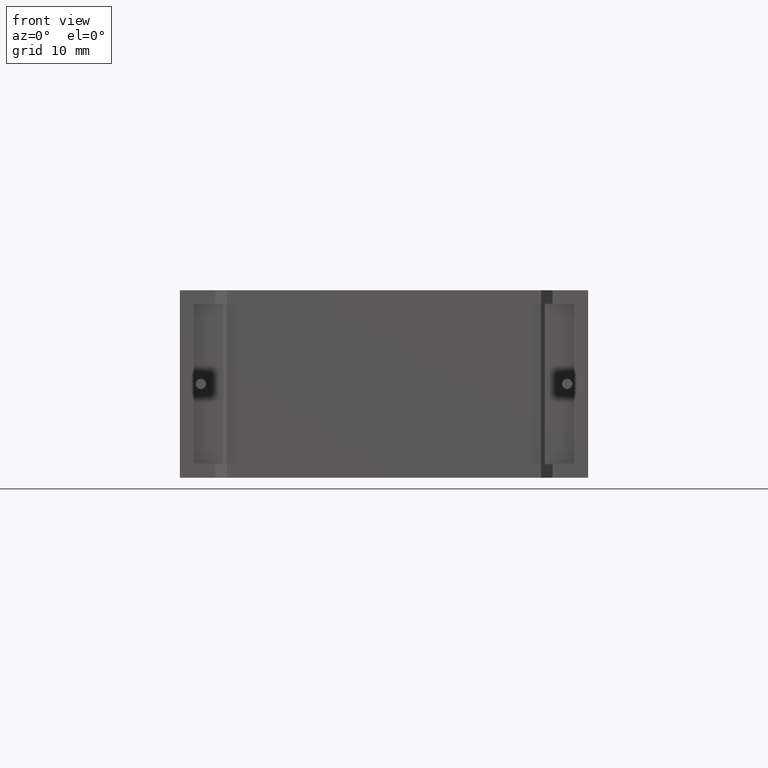
[diagram: clean part render]
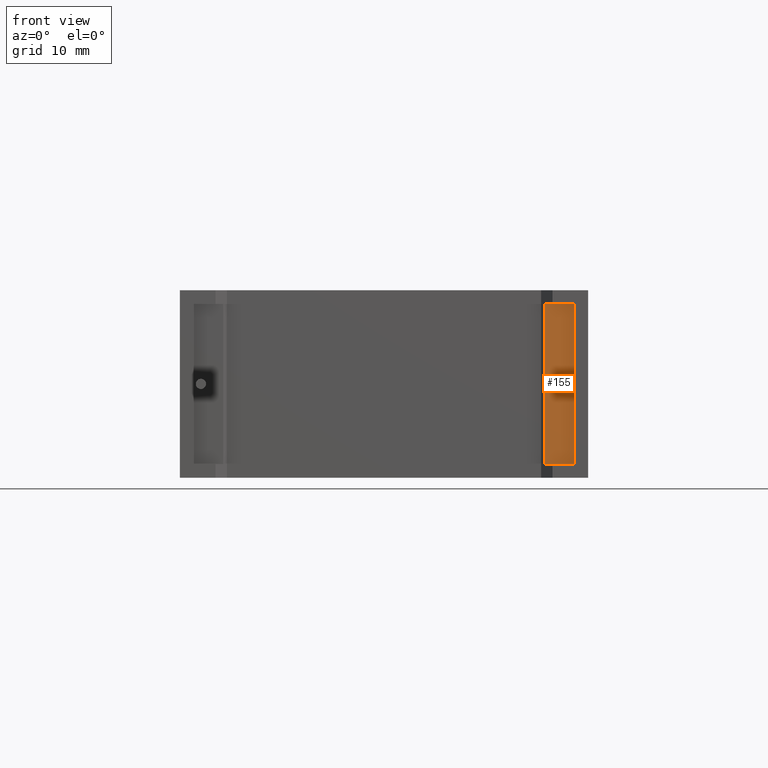
[diagram: same view with one face highlighted and labeled with its STEP entity id]
A machine part, front view. The second image highlights one B-rep face of the part: STEP entity #155.
In plain terms, the highlighted planar face has unit normal (0, -1, 0).
Its self-contained STEP definition (entity closure, byte-faithful):
#3 = DIRECTION ( 'NONE',  ( 0.000000000000000000, 0.000000000000000000, -1.000000000000000000 ) ) ;
#24 = VECTOR ( 'NONE', #25, 1000.000000000000000 ) ;
#25 = DIRECTION ( 'NONE',  ( 1.000000000000000000, 0.000000000000000000, 0.000000000000000000 ) ) ;
#149 = VERTEX_POINT ( 'NONE', #2996 ) ;
#155 = ADVANCED_FACE ( 'NONE', ( #2769, #657 ), #1586, .T. ) ;
#187 = CARTESIAN_POINT ( 'NONE',  ( 39.64999999999999858, 0.7500000000000006661, 9.074999999999999289 ) ) ;
#219 = LINE ( 'NONE', #1179, #24 ) ;
#254 = DIRECTION ( 'NONE',  ( 0.000000000000000000, -1.000000000000000000, -0.000000000000000000 ) ) ;
#278 = LINE ( 'NONE', #2136, #760 ) ;
#290 = DIRECTION ( 'NONE',  ( 0.000000000000000000, -1.000000000000000000, -0.000000000000000000 ) ) ;
#364 = ORIENTED_EDGE ( 'NONE', *, *, #2109, .T. ) ;
#397 = VERTEX_POINT ( 'NONE', #414 ) ;
#414 = CARTESIAN_POINT ( 'NONE',  ( 37.36342319535094703, 0.7500000000000000000, 17.80666680599999907 ) ) ;
#433 = LINE ( 'NONE', #2286, #1830 ) ;
#453 = AXIS2_PLACEMENT_3D ( 'NONE', #512, #2638, #1851 ) ;
#474 = LINE ( 'NONE', #1833, #617 ) ;
#501 = CARTESIAN_POINT ( 'NONE',  ( 39.64999999999999858, 0.7500000000000006661, 9.599999999999999645 ) ) ;
#512 = CARTESIAN_POINT ( 'NONE',  ( 0.000000000000000000, 0.7500000000000000000, 0.000000000000000000 ) ) ;
#585 = VERTEX_POINT ( 'NONE', #2602 ) ;
#617 = VECTOR ( 'NONE', #3, 1000.000000000000000 ) ;
#641 = EDGE_CURVE ( 'NONE', #1508, #149, #1037, .T. ) ;
#657 = FACE_OUTER_BOUND ( 'NONE', #2086, .T. ) ;
#760 = VECTOR ( 'NONE', #2099, 1000.000000000000000 ) ;
#880 = ORIENTED_EDGE ( 'NONE', *, *, #1572, .T. ) ;
#881 = VERTEX_POINT ( 'NONE', #1011 ) ;
#1011 = CARTESIAN_POINT ( 'NONE',  ( 40.40666680599999694, 0.7500000000000000000, 1.393333193999999997 ) ) ;
#1037 = CIRCLE ( 'NONE', #1721, 0.5249999999999994671 ) ;
#1179 = CARTESIAN_POINT ( 'NONE',  ( 1.393333193999999997, 0.7500000000000000000, 1.393333193999999997 ) ) ;
#1317 = ORIENTED_EDGE ( 'NONE', *, *, #2505, .T. ) ;
#1457 = DIRECTION ( 'NONE',  ( 0.000000000000000000, 0.000000000000000000, -1.000000000000000000 ) ) ;
#1468 = CARTESIAN_POINT ( 'NONE',  ( 39.64999999999999858, 0.7500000000000006661, 9.599999999999999645 ) ) ;
#1508 = VERTEX_POINT ( 'NONE', #187 ) ;
#1572 = EDGE_CURVE ( 'NONE', #397, #2797, #474, .T. ) ;
#1586 = PLANE ( 'NONE',  #453 ) ;
#1721 = AXIS2_PLACEMENT_3D ( 'NONE', #501, #254, #2376 ) ;
#1807 = ORIENTED_EDGE ( 'NONE', *, *, #2659, .F. ) ;
#1818 = ORIENTED_EDGE ( 'NONE', *, *, #2499, .T. ) ;
#1830 = VECTOR ( 'NONE', #2733, 1000.000000000000000 ) ;
#1833 = CARTESIAN_POINT ( 'NONE',  ( 37.36342319535094703, 0.7500000000000000000, 0.000000000000000000 ) ) ;
#1851 = DIRECTION ( 'NONE',  ( 0.000000000000000000, 0.000000000000000000, -1.000000000000000000 ) ) ;
#1994 = CARTESIAN_POINT ( 'NONE',  ( 37.36342319535094703, 0.7500000000000000000, 1.393333193999999997 ) ) ;
#1997 = EDGE_LOOP ( 'NONE', ( #1807, #2813 ) ) ;
#2086 = EDGE_LOOP ( 'NONE', ( #364, #880, #1818, #1317 ) ) ;
#2099 = DIRECTION ( 'NONE',  ( 0.000000000000000000, 0.000000000000000000, 1.000000000000000000 ) ) ;
#2109 = EDGE_CURVE ( 'NONE', #585, #397, #433, .T. ) ;
#2136 = CARTESIAN_POINT ( 'NONE',  ( 40.40666680599999694, 0.7500000000000000000, 1.393333193999999997 ) ) ;
#2286 = CARTESIAN_POINT ( 'NONE',  ( 40.40666680599999694, 0.7500000000000000000, 17.80666680599999907 ) ) ;
#2376 = DIRECTION ( 'NONE',  ( 0.000000000000000000, 0.000000000000000000, -1.000000000000000000 ) ) ;
#2380 = CIRCLE ( 'NONE', #2436, 0.5249999999999994671 ) ;
#2436 = AXIS2_PLACEMENT_3D ( 'NONE', #1468, #290, #1457 ) ;
#2499 = EDGE_CURVE ( 'NONE', #2797, #881, #219, .T. ) ;
#2505 = EDGE_CURVE ( 'NONE', #881, #585, #278, .T. ) ;
#2602 = CARTESIAN_POINT ( 'NONE',  ( 40.40666680599999694, 0.7500000000000000000, 17.80666680599999907 ) ) ;
#2638 = DIRECTION ( 'NONE',  ( 0.000000000000000000, -1.000000000000000000, 0.000000000000000000 ) ) ;
#2659 = EDGE_CURVE ( 'NONE', #149, #1508, #2380, .T. ) ;
#2733 = DIRECTION ( 'NONE',  ( -1.000000000000000000, 0.000000000000000000, -8.892977427815748891E-17 ) ) ;
#2769 = FACE_BOUND ( 'NONE', #1997, .T. ) ;
#2797 = VERTEX_POINT ( 'NONE', #1994 ) ;
#2813 = ORIENTED_EDGE ( 'NONE', *, *, #641, .F. ) ;
#2996 = CARTESIAN_POINT ( 'NONE',  ( 39.64999999999999858, 0.7500000000000006661, 10.12499999999999822 ) ) ;